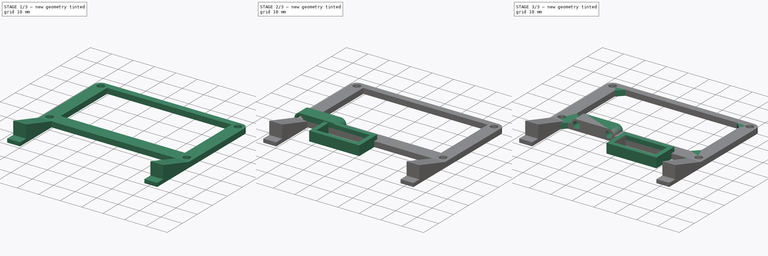
[diagram: build sequence overview — one tinted view per stage of 3, left to right]
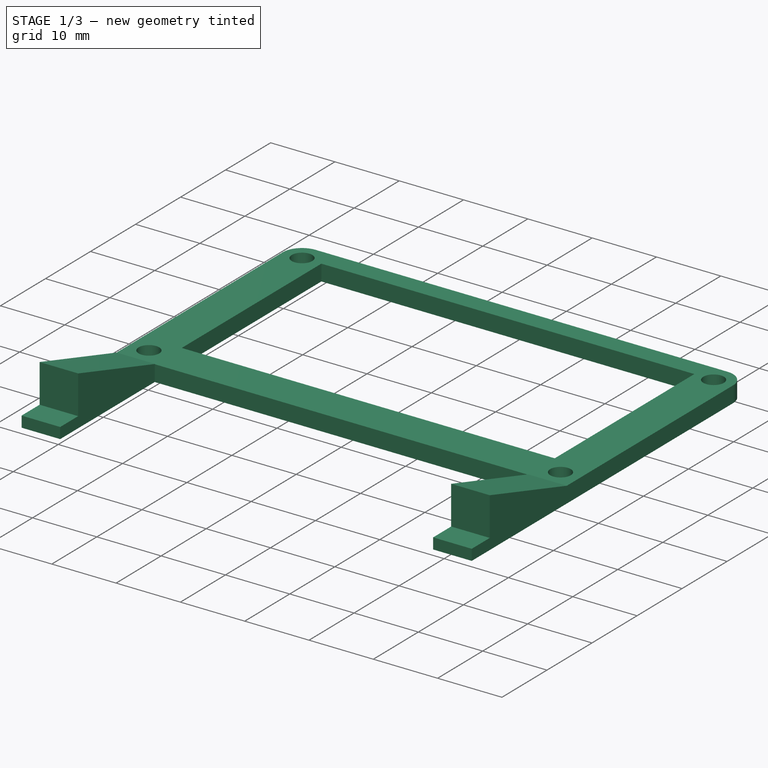
[diagram: stage 1 of 3 — iso view after this stage's code; geometry added in this stage tinted green]
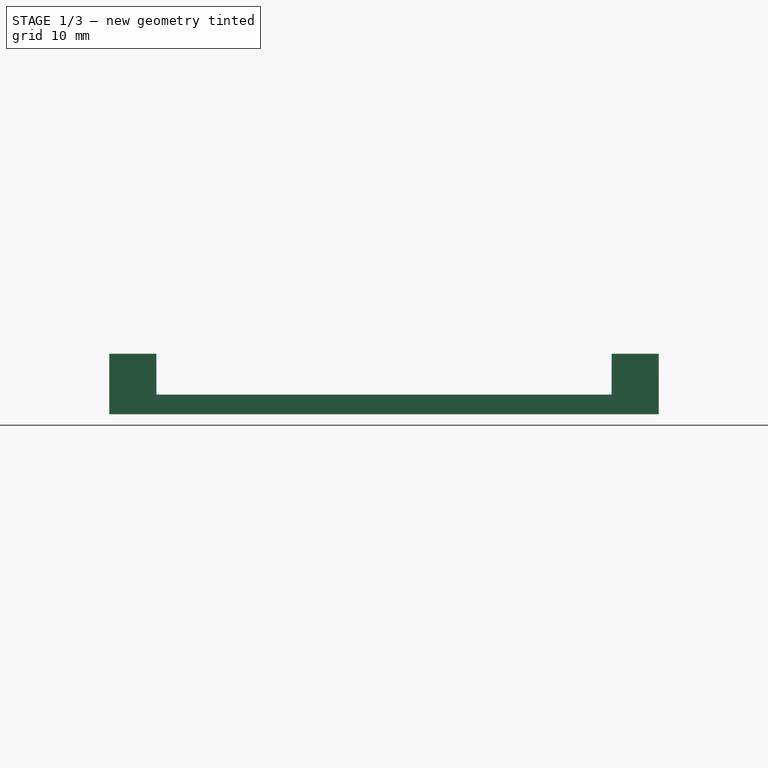
[diagram: stage 1 of 3 — front view after this stage's code; geometry added in this stage tinted green]
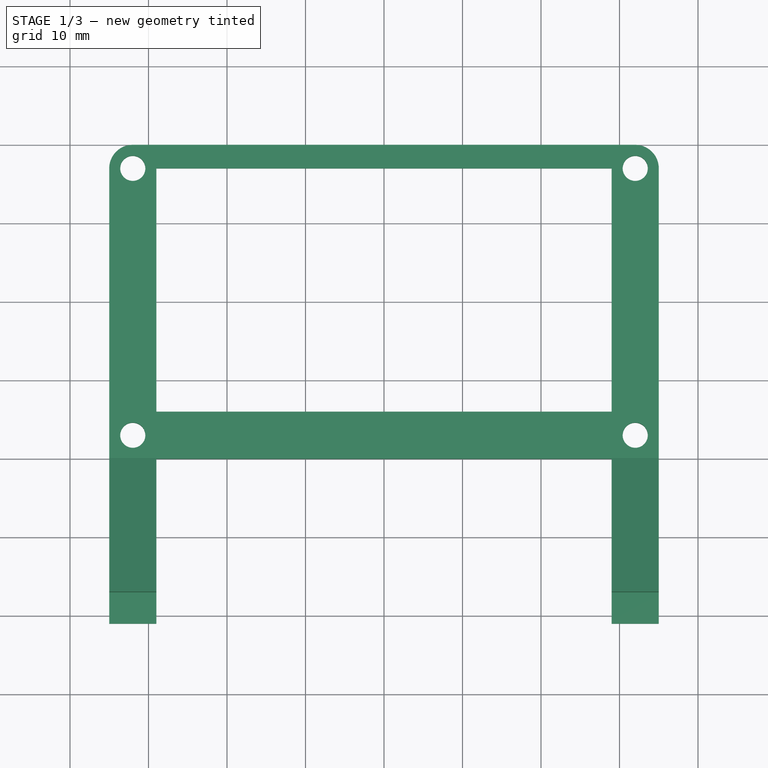
[diagram: stage 1 of 3 — top view after this stage's code; geometry added in this stage tinted green]
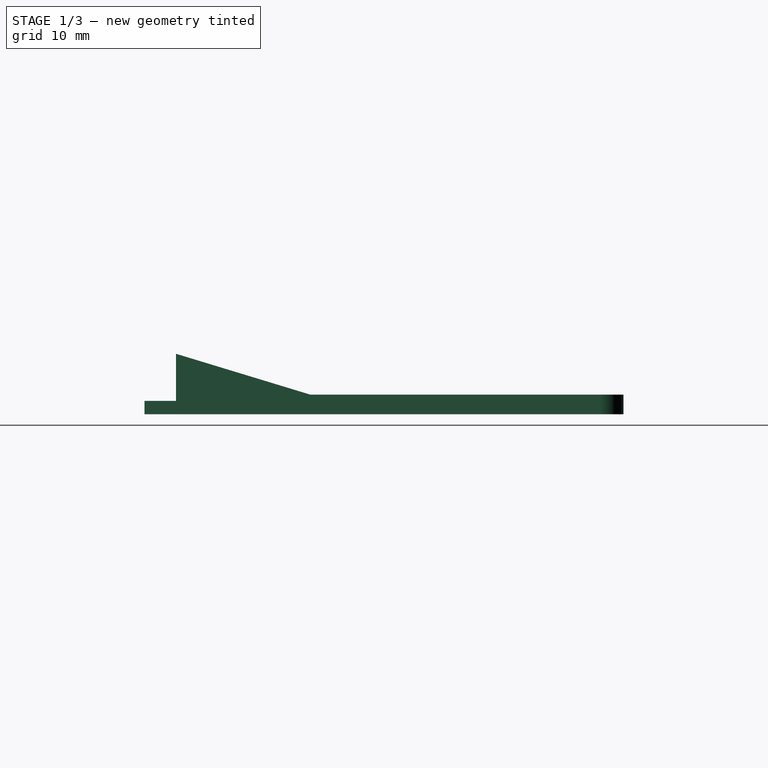
[diagram: stage 1 of 3 — right view after this stage's code; geometry added in this stage tinted green]
FCSTD DOCUMENT  (FreeCAD 0.16R6707 (Git))
Label: Ground_Bumper_LZRGrey
License: All rights reserved
LicenseURL: http://en.wikipedia.org/wiki/All_rights_reserved
objects: Sketcher::SketchObject×5, PartDesign::Pad×4, PartDesign::Chamfer×2, PartDesign::LinearPattern×1, PartDesign::Pocket×1
note: 18 computed .brp shape members not serialized (recipe doc carries the construction recipe); baked Part::Feature solids carry a one-line shape summary decoded from their .brp

FEATURE [Sketcher::SketchObject] Sketch
  sketch-geometry (18):
    g0: LineSegment [constr] StartX=-32 StartY=-17 StartZ=0 EndX=32 EndY=-17 EndZ=0
    g1: LineSegment [constr] StartX=32 StartY=-17 StartZ=0 EndX=32 EndY=17 EndZ=0
    g2: LineSegment [constr] StartX=32 StartY=17 StartZ=0 EndX=-32 EndY=17 EndZ=0
    g3: LineSegment [constr] StartX=-32 StartY=17 StartZ=0 EndX=-32 EndY=-17 EndZ=0
    g4: Circle CenterX=-32 CenterY=17 CenterZ=0 NormalX=0 NormalY=0 NormalZ=1 Radius=1.6
    g5: Circle CenterX=32 CenterY=17 CenterZ=0 NormalX=0 NormalY=0 NormalZ=1 Radius=1.6
    g6: Circle CenterX=32 CenterY=-17 CenterZ=0 NormalX=0 NormalY=0 NormalZ=1 Radius=1.6
    g7: Circle CenterX=-32 CenterY=-17 CenterZ=0 NormalX=0 NormalY=0 NormalZ=1 Radius=1.6
    g8: LineSegment StartX=-32 StartY=20 StartZ=0 EndX=32 EndY=20 EndZ=0
    g9: LineSegment StartX=35 StartY=17 StartZ=0 EndX=35 EndY=-20 EndZ=0
    g10: LineSegment StartX=35 StartY=-20 StartZ=0 EndX=-35 EndY=-20 EndZ=0
    g11: LineSegment StartX=-35 StartY=-20 StartZ=0 EndX=-35 EndY=17 EndZ=0
    g12: LineSegment StartX=-29 StartY=17 StartZ=0 EndX=29 EndY=17 EndZ=0
    g13: LineSegment StartX=-29 StartY=17 StartZ=0 EndX=-29 EndY=-14 EndZ=0
    g14: LineSegment StartX=-29 StartY=-14 StartZ=0 EndX=29 EndY=-14 EndZ=0
    g15: LineSegment StartX=29 StartY=-14 StartZ=0 EndX=29 EndY=17 EndZ=0
    g16: ArcOfCircle CenterX=-32 CenterY=17 CenterZ=0 NormalX=0 NormalY=0 NormalZ=1 Radius=3 StartAngle=1.5708 EndAngle=3.14159
    g17: ArcOfCircle CenterX=32 CenterY=17 CenterZ=0 NormalX=0 NormalY=0 NormalZ=1 Radius=3 StartAngle=0 EndAngle=1.5708
  constraints (45):
    c: Coincident(g0,g1)
    c: Coincident(g1,g2)
    c: Coincident(g2,g3)
    c: Coincident(g3,g0)
    c: Horizontal(g0)
    c: Horizontal(g2)
    c: Vertical(g1)
    c: Vertical(g3)
    c: Distance(g3) = 34
    c: Distance(g2) = 64
    c: Symmetric(g0,g1,g-1)
    c: Coincident(g4,g2)
    c: Coincident(g5,g1)
    c: Coincident(g6,g0)
    c: Coincident(g7,g0)
    c: Equal(g7,g4)
    c: Equal(g4,g5)
    c: Equal(g5,g6)
    c: Radius(g4) = 1.6
    c: Horizontal(g8)
    c: Horizontal(g10)
    c: Vertical(g9)
    c: Vertical(g11)
    c: PointOnObject(g12,g2)
    c: Horizontal(g12)
    c: Vertical(g13)
    c: Horizontal(g14)
    c: Coincident(g15,g14)
    c: Vertical(g15)
    c: Coincident(g13,g14)
    c: Coincident(g15,g12)
    c: Coincident(g12,g13)
    c: DistanceY(g0,g14) = 3
    c: DistanceX(g14,g0) = 3
    c: DistanceX(g0,g13) = 3
    c: Tangent(g8,g16) = 1.5708
    c: Tangent(g11,g16) = 1.5708
    c: Coincident(g16,g2)
    c: Tangent(g8,g17) = 1.5708
    c: Tangent(g9,g17) = 1.5708
    c: Coincident(g17,g1)
    c: Coincident(g10,g11)
    c: Coincident(g10,g9)
    c: DistanceY(g10,g0) = 3
    c: DistanceX(g10,g0) = 3
FEATURE [PartDesign::Pad] Pad
  Length = 2.5
  Length2 = 100
  Sketch = -> Sketch
  Type = 0
FEATURE [Sketcher::SketchObject] Sketch001
  ExternalGeometry = -> [Pad]
  Placement = pos=(-35,0,0) rot=(0.57735,-0.57735,-0.57735;2.0944rad)
  Support = -> Pad [Face3]
  sketch-geometry (6):
    g0: LineSegment StartX=19.9 StartY=0 StartZ=0 EndX=41 EndY=0 EndZ=0
    g1: LineSegment StartX=41 StartY=0 StartZ=0 EndX=41 EndY=1.7 EndZ=0
    g2: LineSegment StartX=19.9 StartY=2.5 StartZ=0 EndX=19.9 EndY=0 EndZ=0
    g3: LineSegment StartX=41 StartY=1.7 StartZ=0 EndX=37 EndY=1.7 EndZ=0
    g4: LineSegment StartX=37 StartY=1.7 StartZ=0 EndX=37 EndY=7.7 EndZ=0
    g5: LineSegment StartX=19.9 StartY=2.5 StartZ=0 EndX=37 EndY=7.7 EndZ=0
  constraints (18):
    c: Coincident(g0,g1)
    c: Coincident(g2,g0)
    c: Horizontal(g0)
    c: Vertical(g1)
    c: Vertical(g2)
    c: PointOnObject(g0,g-1)
    c: PointOnObject(g2,g-4)
    c: Distance(g2,g-4) = 0.1
    c: DistanceX(g-3,g1) = 24
    c: Coincident(g3,g1)
    c: Horizontal(g3)
    c: Distance(g3) = 4
    c: Coincident(g4,g3)
    c: Vertical(g4)
    c: Distance(g4) = 6
    c: Coincident(g5,g2)
    c: Coincident(g5,g4)
    c: Distance(g1) = 1.7
FEATURE [PartDesign::Pad] Pad001
  Length = 6
  Length2 = 100
  Reversed = true
  Sketch = -> Sketch001
  Type = 0
FEATURE [PartDesign::LinearPattern] LinearPattern
  Direction = -> Pad001 [Edge10]
  Length = 64
  Occurrences = 2
  Originals = -> [Pad001]
  Reversed = true
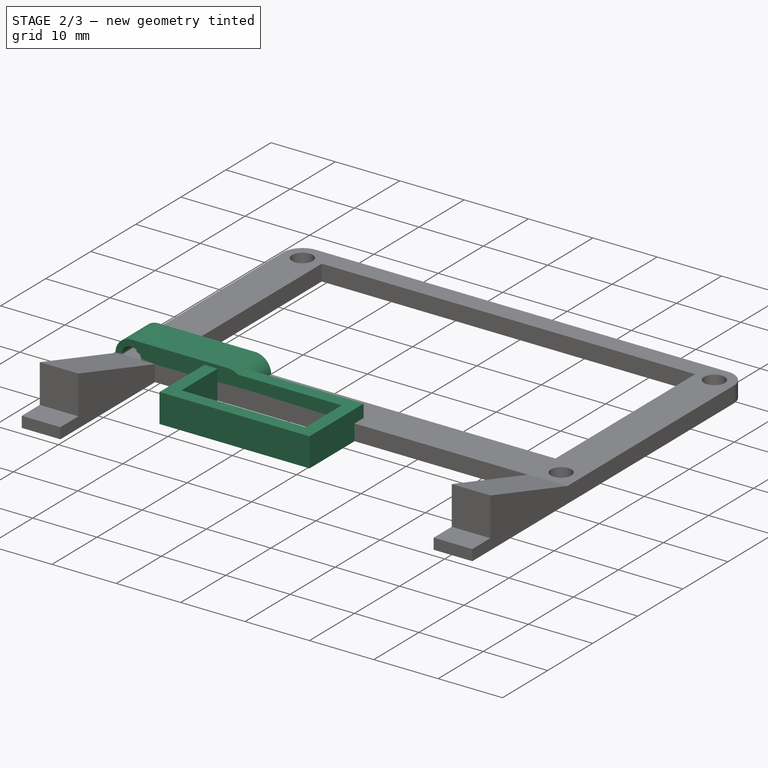
[diagram: stage 2 of 3 — iso view after this stage's code; geometry added in this stage tinted green]
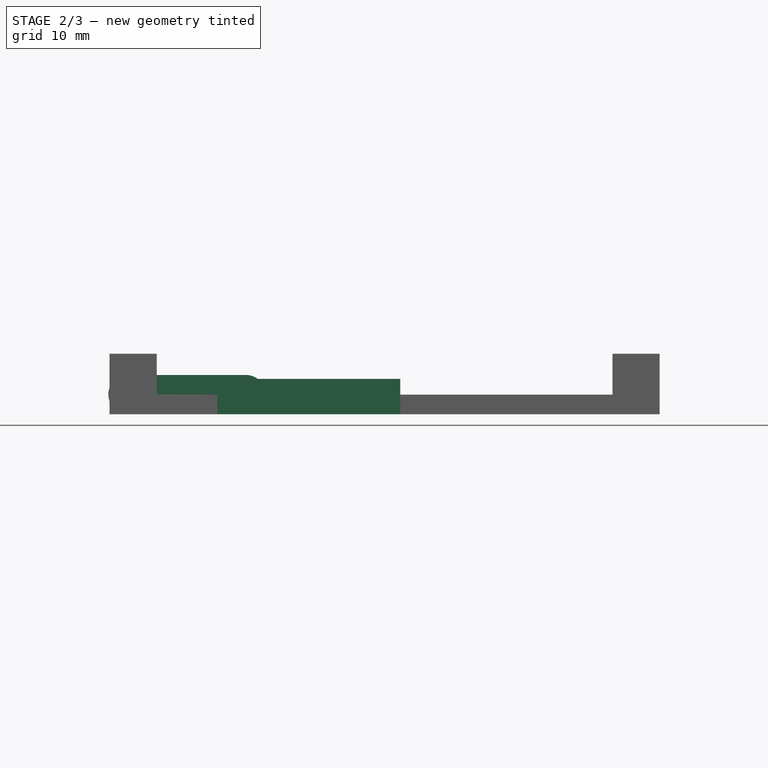
[diagram: stage 2 of 3 — front view after this stage's code; geometry added in this stage tinted green]
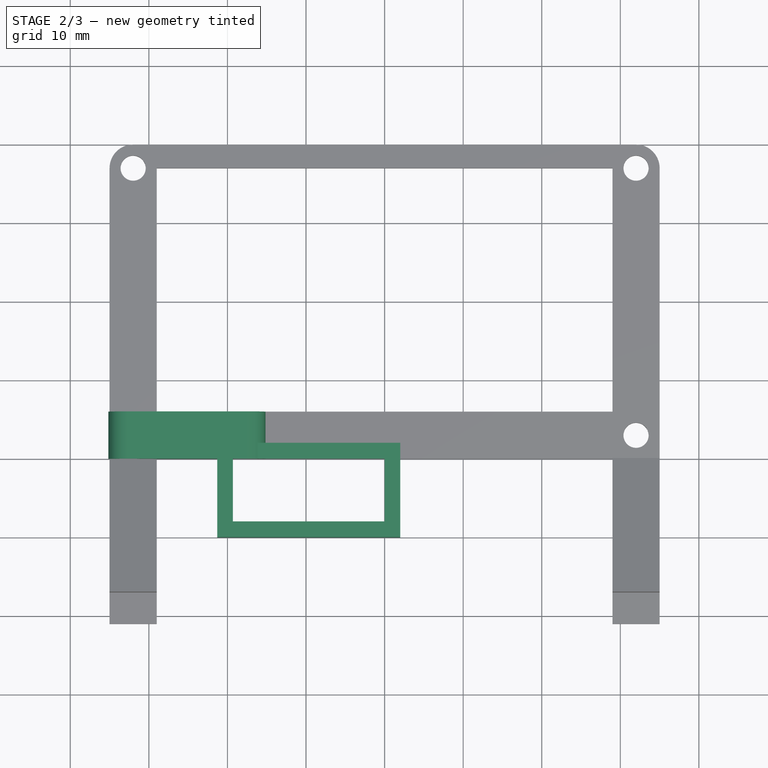
[diagram: stage 2 of 3 — top view after this stage's code; geometry added in this stage tinted green]
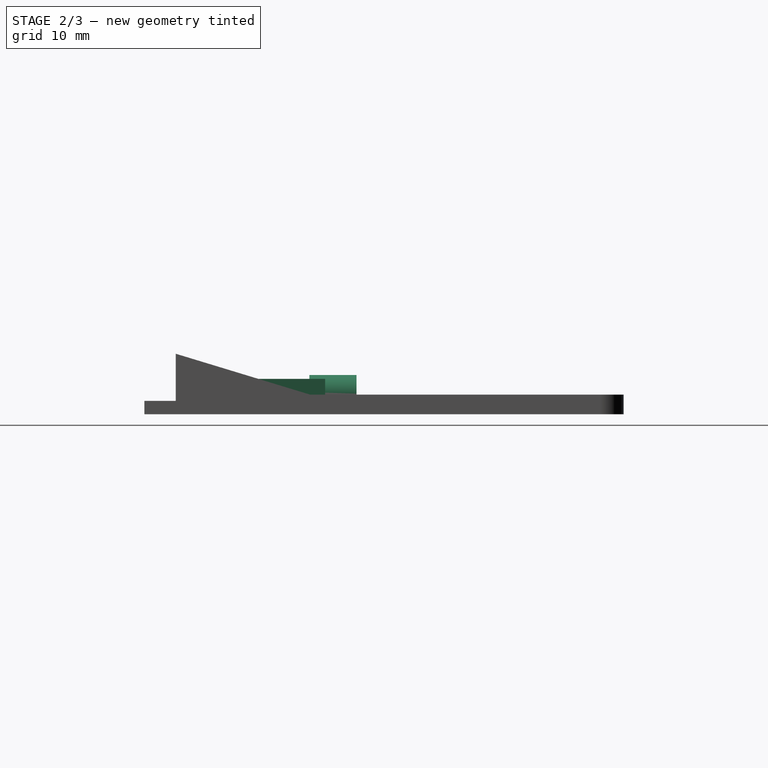
[diagram: stage 2 of 3 — right view after this stage's code; geometry added in this stage tinted green]
FEATURE [Sketcher::SketchObject] Sketch002
  ExternalGeometry = -> [LinearPattern]
  Placement = pos=(0,0,2.5) rot=(0,0,1;0rad)
  Support = -> LinearPattern [Face5]
  sketch-geometry (8):
    g0: LineSegment StartX=-19.3 StartY=-27.99 StartZ=0 EndX=0 EndY=-27.99 EndZ=0
    g1: LineSegment StartX=0 StartY=-27.99 StartZ=0 EndX=0 EndY=-19.99 EndZ=0
    g2: LineSegment StartX=0 StartY=-19.99 StartZ=0 EndX=-19.3 EndY=-19.99 EndZ=0
    g3: LineSegment StartX=-19.3 StartY=-19.99 StartZ=0 EndX=-19.3 EndY=-27.99 EndZ=0
    g4: LineSegment StartX=-21.3 StartY=-17.99 StartZ=0 EndX=2 EndY=-17.99 EndZ=0
    g5: LineSegment StartX=2 StartY=-17.99 StartZ=0 EndX=2 EndY=-29.99 EndZ=0
    g6: LineSegment StartX=2 StartY=-29.99 StartZ=0 EndX=-21.3 EndY=-29.99 EndZ=0
    g7: LineSegment StartX=-21.3 StartY=-29.99 StartZ=0 EndX=-21.3 EndY=-17.99 EndZ=0
  constraints (24):
    c: Coincident(g0,g1)
    c: Coincident(g1,g2)
    c: Coincident(g3,g0)
    c: Horizontal(g0)
    c: Horizontal(g2)
    c: Vertical(g1)
    c: Vertical(g3)
    c: Distance(g3) = 8
    c: Distance(g2) = 19.3
    c: DistanceY(g-3,g2) = 0.01
    c: Coincident(g4,g5)
    c: Coincident(g5,g6)
    c: Coincident(g6,g7)
    c: Coincident(g7,g4)
    c: Horizontal(g4)
    c: Horizontal(g6)
    c: Vertical(g5)
    c: Vertical(g7)
    c: DistanceY(g2,g4) = 2
    c: DistanceX(g4,g2) = 2
    c: DistanceX(g0,g5) = 2
    c: DistanceY(g5,g0) = 2
    c: Coincident(g3,g2)
    c: PointOnObject(g1,g-2)
FEATURE [PartDesign::Pad] Pad002
  Length = 2
  Length2 = 2.5
  Sketch = -> Sketch002
  Type = 4
FEATURE [Sketcher::SketchObject] Sketch003
  ExternalGeometry = -> [Pad002]
  Placement = pos=(0,-20,0) rot=(1,0,0;1.5708rad)
  Support = -> Pad002 [Face9]
  sketch-geometry (13):
    g0: Circle CenterX=-32.65 CenterY=2.5 CenterZ=0 NormalX=0 NormalY=0 NormalZ=1 Radius=1.5
    g1: Circle CenterX=-17.65 CenterY=2.5 CenterZ=0 NormalX=0 NormalY=0 NormalZ=1 Radius=1.5
    g2: LineSegment [constr] StartX=-32.65 StartY=2.5 StartZ=0 EndX=-17.65 EndY=2.5 EndZ=0
    g3: LineSegment [constr] StartX=-36.15 StartY=4 StartZ=0 EndX=-14.15 EndY=4 EndZ=0
    g4: LineSegment [constr] StartX=-14.15 StartY=4 StartZ=0 EndX=-14.15 EndY=1 EndZ=0
    g5: LineSegment [constr] StartX=-14.15 StartY=1 StartZ=0 EndX=-36.15 EndY=1 EndZ=0
    g6: LineSegment [constr] StartX=-36.15 StartY=1 StartZ=0 EndX=-36.15 EndY=4 EndZ=0
    g7: ArcOfCircle CenterX=-32.65 CenterY=2.5 CenterZ=0 NormalX=0 NormalY=0 NormalZ=1 Radius=2.5 StartAngle=1.5708 EndAngle=4.71239
    g8: ArcOfCircle CenterX=-17.65 CenterY=2.5 CenterZ=0 NormalX=0 NormalY=0 NormalZ=1 Radius=2.5 StartAngle=4.71239 EndAngle=7.85398
    g9: LineSegment StartX=-32.65 StartY=0 StartZ=0 EndX=-17.65 EndY=0 EndZ=0
    g10: LineSegment StartX=-32.65 StartY=5 StartZ=0 EndX=-17.65 EndY=5 EndZ=0
    g11: LineSegment [constr] StartX=-29 StartY=2.5 StartZ=0 EndX=-32.65 EndY=2.5 EndZ=0
    g12: LineSegment [constr] StartX=-21.3 StartY=2.5 StartZ=0 EndX=-17.65 EndY=2.5 EndZ=0
  constraints (33):
    c: Equal(g0,g1)
    c: Radius(g0) = 1.5
    c: Coincident(g2,g0)
    c: Coincident(g2,g1)
    c: Horizontal(g2)
    c: Distance(g2) = 15
    c: Coincident(g3,g4)
    c: Coincident(g4,g5)
    c: Coincident(g5,g6)
    c: Coincident(g6,g3)
    c: Horizontal(g3)
    c: Horizontal(g5)
    c: Vertical(g4)
    c: Vertical(g6)
    c: Distance(g3) = 22
    c: Tangent(g0,g5)
    c: Tangent(g0,g3)
    c: DistanceX(g5,g0) = 3.5
    c: DistanceY(g-1,g4) = 1
    c: Tangent(g7,g10) = 1.5708
    c: Tangent(g7,g9) = -1.5708
    c: Tangent(g9,g8) = -1.5708
    c: Tangent(g10,g8) = 1.5708
    c: Horizontal(g9)
    c: Equal(g7,g8)
    c: Coincident(g7,g0)
    c: Coincident(g8,g1)
    c: PointOnObject(g8,g-1)
    c: Coincident(g11,g-3)
    c: Coincident(g12,g-4)
    c: Equal(g12,g11)
    c: Coincident(g11,g0)
    c: Coincident(g12,g1)
FEATURE [PartDesign::Pad] Pad003
  Length = 6
  Length2 = 100
  Reversed = true
  Sketch = -> Sketch003
  Type = 0
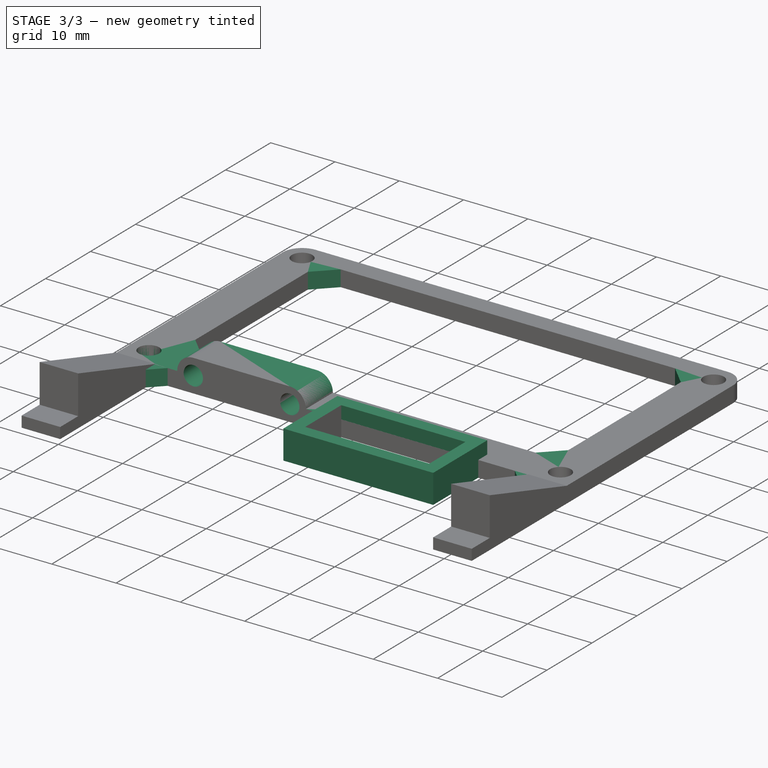
[diagram: stage 3 of 3 — iso view after this stage's code; geometry added in this stage tinted green]
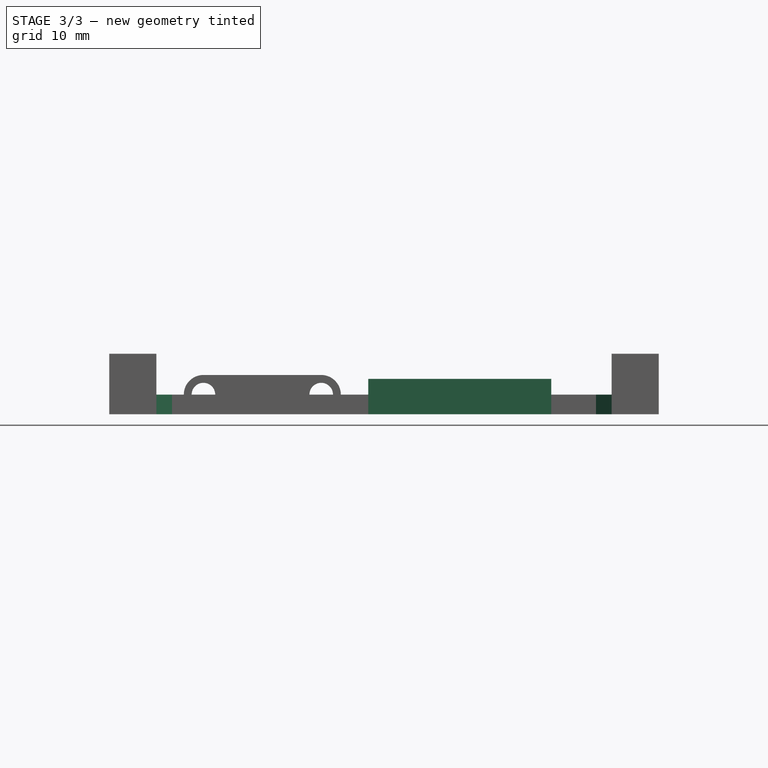
[diagram: stage 3 of 3 — front view after this stage's code; geometry added in this stage tinted green]
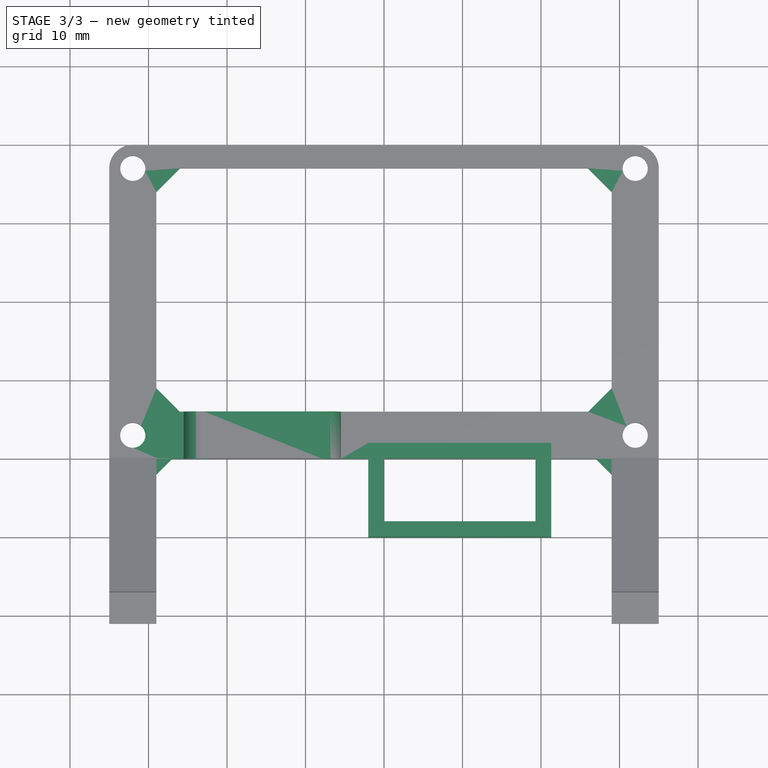
[diagram: stage 3 of 3 — top view after this stage's code; geometry added in this stage tinted green]
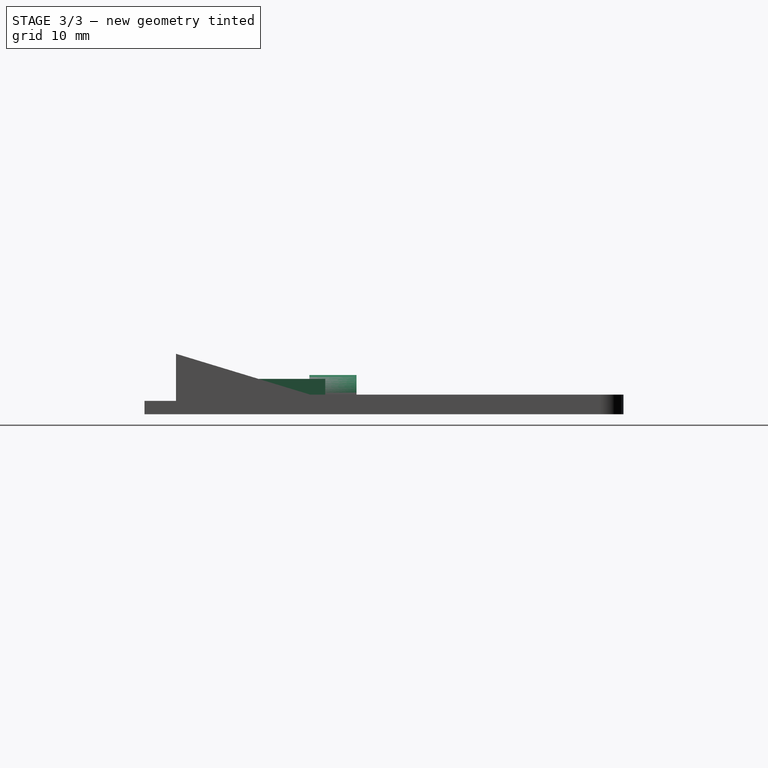
[diagram: stage 3 of 3 — right view after this stage's code; geometry added in this stage tinted green]
FEATURE [Sketcher::SketchObject] Sketch004
  ExternalGeometry = -> [Pad003]
  Placement = pos=(0,-29.99,0) rot=(1,0,0;1.5708rad)
  Support = -> Pad003 [Face47]
  sketch-geometry (2):
    g0: Circle CenterX=-35 CenterY=1.64706 CenterZ=0 NormalX=0 NormalY=0 NormalZ=1 Radius=3.378e-08
    g1: Circle CenterX=-20.7504 CenterY=2.09721 CenterZ=0 NormalX=0 NormalY=0 NormalZ=1 Radius=14.2567
  constraints (4):
    c: Coincident(g0,g-3)
    c: Coincident(g1,g-4)
    c: PointOnObject(g-4,g1)
    c: PointOnObject(g-3,g0)
FEATURE [PartDesign::Pocket] Pocket
  Length = 10
  Sketch = -> Sketch004
  Type = 0
FEATURE [PartDesign::Chamfer] Chamfer
  Base = -> Pocket [Edge79,Edge63]
  Size = 2
FEATURE [PartDesign::Chamfer] Chamfer001
  Base = -> Chamfer [Edge55,Edge68,Edge64,Edge60]
  Size = 3
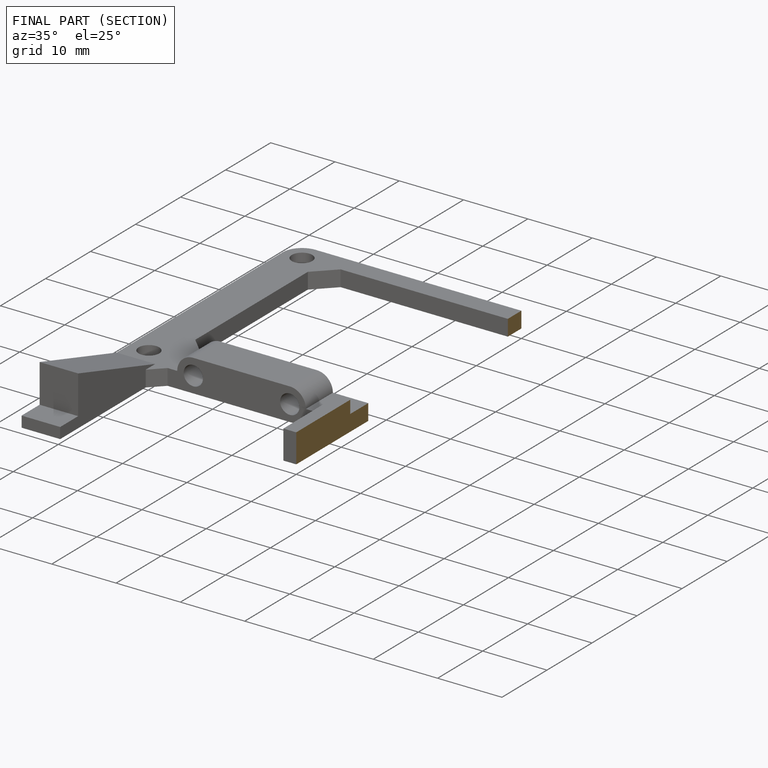
[diagram: finished part — half-section view (interior)]
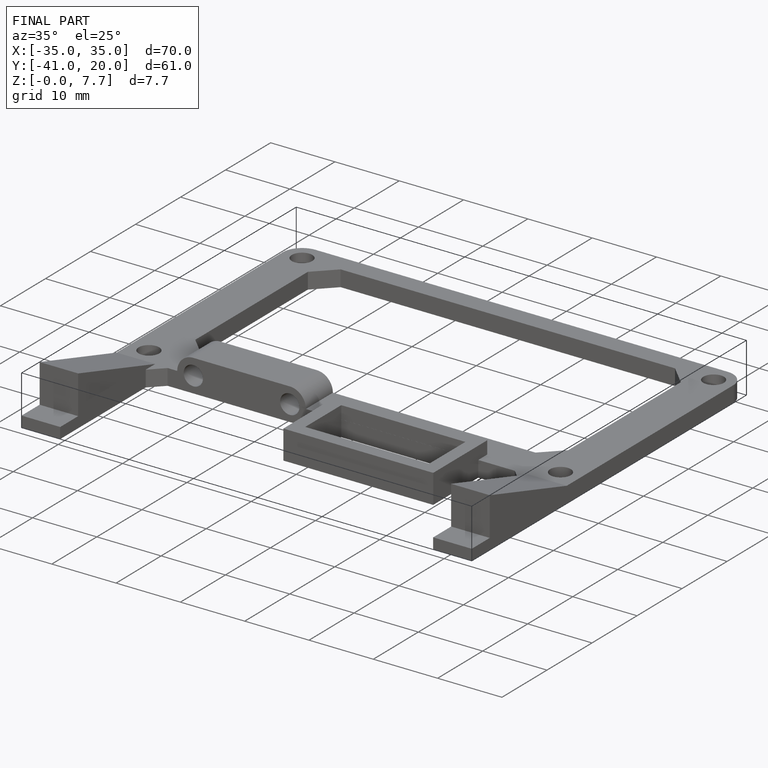
[diagram: finished part — iso view with bounding-box wireframe]
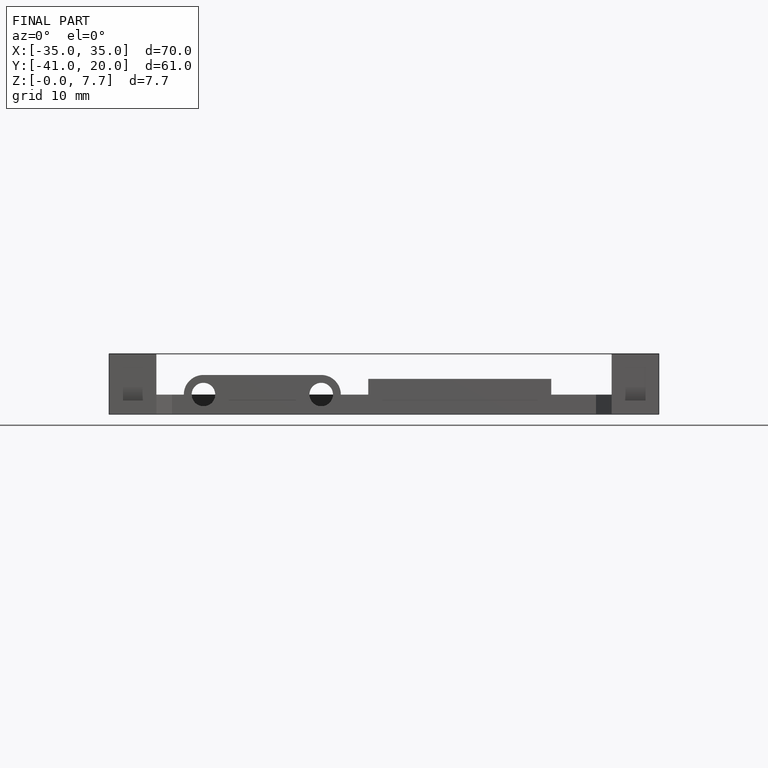
[diagram: finished part — front view with bounding-box wireframe]
